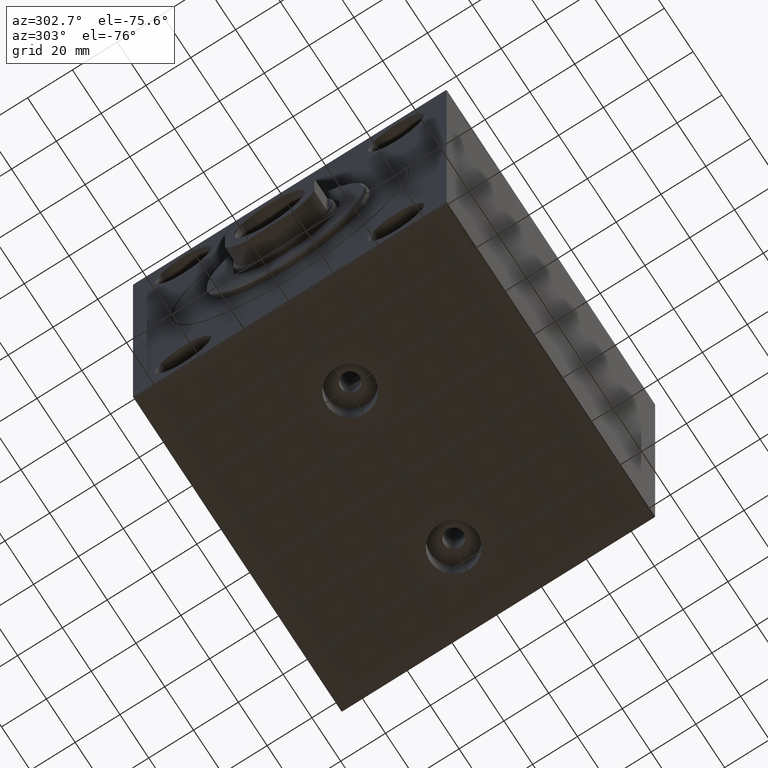
[diagram: clean part render]
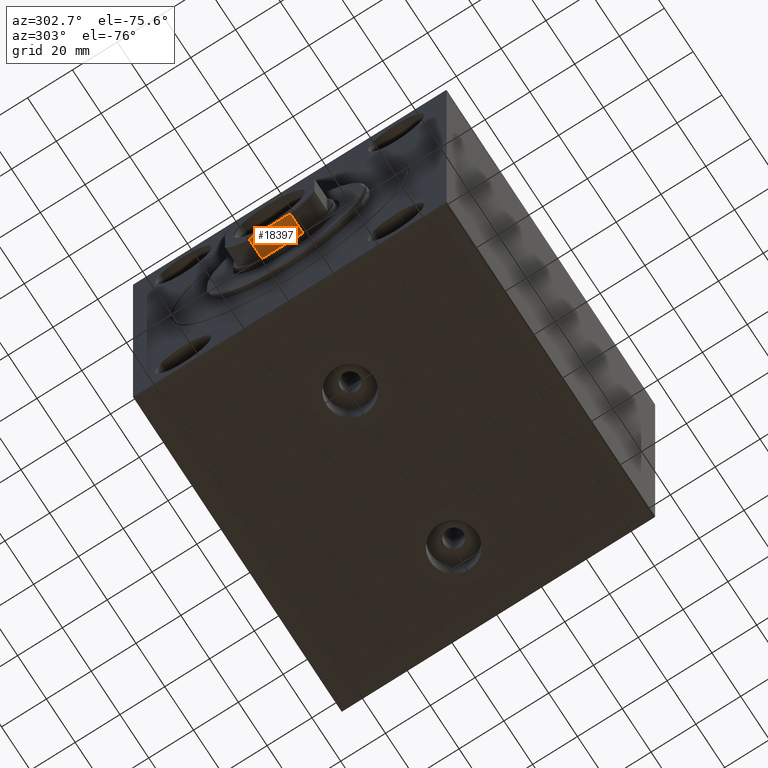
[diagram: same view with one face highlighted and labeled with its STEP entity id]
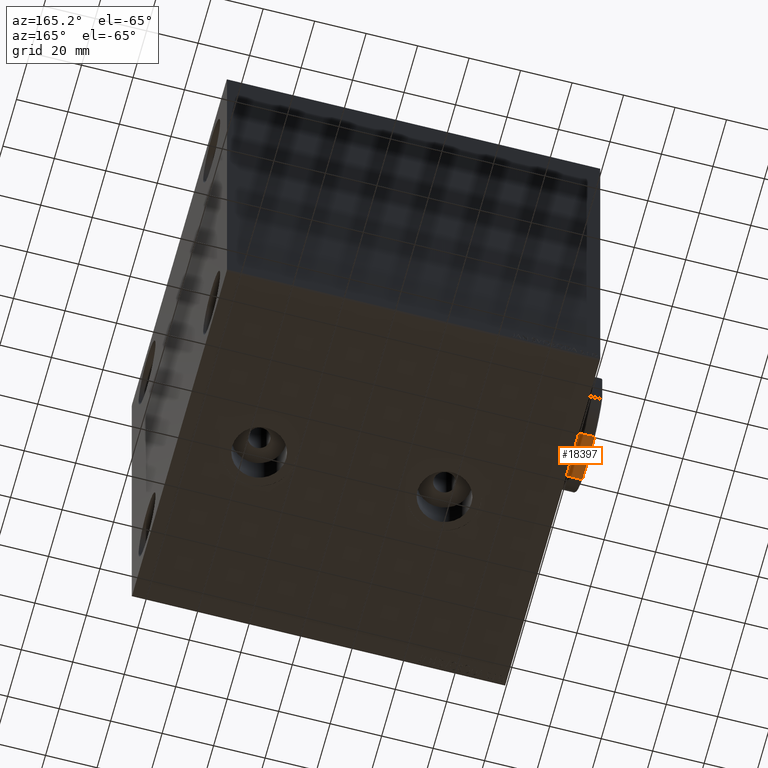
[diagram: same view with one face highlighted and labeled with its STEP entity id]
A machine part, auxiliary view. The second image highlights one B-rep face of the part: STEP entity #18397.
A second angle (auxiliary view) of the same face is appended — the face is thin or edge-on in the first view.
In plain terms, the highlighted planar face has unit normal (0, 0, 1).
Its self-contained STEP definition (entity closure, byte-faithful):
#34 = CARTESIAN_POINT ( 'NONE',  ( -20.00000000000000711, 19.99999999999998934, 64.99999999999998579 ) ) ;
#952 = VECTOR ( 'NONE', #38835, 1000.000000000000000 ) ;
#1202 = LINE ( 'NONE', #5076, #17236 ) ;
#5076 = CARTESIAN_POINT ( 'NONE',  ( -19.99999999999999645, -9.165151389911686763, -0.001000000000001000089 ) ) ;
#7338 = DIRECTION ( 'NONE',  ( -2.602085213965210642E-16, 1.000000000000000000, 0.000000000000000000 ) ) ;
#8057 = LINE ( 'NONE', #12379, #17334 ) ;
#9041 = CARTESIAN_POINT ( 'NONE',  ( -20.00000000000000355, 8.419619943916735849, 64.99999999999998579 ) ) ;
#10279 = ORIENTED_EDGE ( 'NONE', *, *, #29722, .T. ) ;
#10324 = LINE ( 'NONE', #10547, #952 ) ;
#10547 = CARTESIAN_POINT ( 'NONE',  ( -20.00000000000000711, 19.99999999999998934, 55.99999999999999289 ) ) ;
#10609 = B_SPLINE_CURVE_WITH_KNOTS ( 'NONE', 3,
 ( #19030, #32951, #15628, #29519 ),
 .UNSPECIFIED., .F., .F.,
 ( 4, 4 ),
 ( 0.000000000000000000, 0.0008036274864433664991 ),
 .UNSPECIFIED. ) ;
#10763 = DIRECTION ( 'NONE',  ( 1.000000000000000000, 2.602085213965210642E-16, -0.000000000000000000 ) ) ;
#11452 = PLANE ( 'NONE',  #28964 ) ;
#11937 = DIRECTION ( 'NONE',  ( 2.602085213965210642E-16, -1.000000000000000000, 0.000000000000000000 ) ) ;
#12379 = CARTESIAN_POINT ( 'NONE',  ( -20.00000000000000711, 19.99999999999998934, 64.99999999999998579 ) ) ;
#12665 = DIRECTION ( 'NONE',  ( -0.000000000000000000, -0.000000000000000000, 1.000000000000000000 ) ) ;
#15560 = CARTESIAN_POINT ( 'NONE',  ( -19.99999999999999645, -9.165151389911686763, 55.99999999999998579 ) ) ;
#15628 = CARTESIAN_POINT ( 'NONE',  ( -20.00000000000000000, -8.669375665356257699, 64.90309455053734666 ) ) ;
#15944 = VERTEX_POINT ( 'NONE', #15560 ) ;
#17236 = VECTOR ( 'NONE', #29478, 1000.000000000000000 ) ;
#17334 = VECTOR ( 'NONE', #11937, 1000.000000000000000 ) ;
#18397 = ADVANCED_FACE ( 'NONE', ( #39059 ), #11452, .F. ) ;
#19030 = CARTESIAN_POINT ( 'NONE',  ( -19.99999999999999645, -9.165151389911686763, 64.70000000000001705 ) ) ;
#19372 = CARTESIAN_POINT ( 'NONE',  ( -19.99999999999999645, -9.165151389911686763, 64.70000000000001705 ) ) ;
#20502 = EDGE_CURVE ( 'NONE', #15944, #24345, #1202, .T. ) ;
#20859 = ORIENTED_EDGE ( 'NONE', *, *, #42069, .F. ) ;
#21074 = VERTEX_POINT ( 'NONE', #39210 ) ;
#23365 = ORIENTED_EDGE ( 'NONE', *, *, #23992, .F. ) ;
#23992 = EDGE_CURVE ( 'NONE', #25690, #27921, #8057, .T. ) ;
#24345 = VERTEX_POINT ( 'NONE', #19372 ) ;
#24683 = VERTEX_POINT ( 'NONE', #44526 ) ;
#25690 = VERTEX_POINT ( 'NONE', #9041 ) ;
#26744 = CARTESIAN_POINT ( 'NONE',  ( -20.00000000000000000, -8.419619943916748284, 64.99999999999998579 ) ) ;
#27438 = CARTESIAN_POINT ( 'NONE',  ( -19.99999999999999289, 9.165151389911692092, -0.001000000000001000089 ) ) ;
#27497 = EDGE_CURVE ( 'NONE', #25690, #24683, #31363, .T. ) ;
#27921 = VERTEX_POINT ( 'NONE', #26744 ) ;
#28964 = AXIS2_PLACEMENT_3D ( 'NONE', #34, #10763, #7338 ) ;
#29478 = DIRECTION ( 'NONE',  ( -0.000000000000000000, -0.000000000000000000, 1.000000000000000000 ) ) ;
#29519 = CARTESIAN_POINT ( 'NONE',  ( -20.00000000000000000, -8.419619943916748284, 64.99999999999998579 ) ) ;
#29722 = EDGE_CURVE ( 'NONE', #24345, #27921, #10609, .T. ) ;
#29902 = EDGE_LOOP ( 'NONE', ( #38346, #10279, #23365, #37962, #20859, #39318 ) ) ;
#31363 = B_SPLINE_CURVE_WITH_KNOTS ( 'NONE', 3,
 ( #35017, #38452, #38680, #42093 ),
 .UNSPECIFIED., .F., .F.,
 ( 4, 4 ),
 ( 0.000000000000000000, 0.0008036274864433824369 ),
 .UNSPECIFIED. ) ;
#32951 = CARTESIAN_POINT ( 'NONE',  ( -19.99999999999999645, -8.917857062074594054, 64.80302227056790798 ) ) ;
#35017 = CARTESIAN_POINT ( 'NONE',  ( -20.00000000000000355, 8.419619943916735849, 64.99999999999998579 ) ) ;
#37962 = ORIENTED_EDGE ( 'NONE', *, *, #27497, .T. ) ;
#38346 = ORIENTED_EDGE ( 'NONE', *, *, #20502, .T. ) ;
#38452 = CARTESIAN_POINT ( 'NONE',  ( -20.00000000000000711, 8.669375665356248817, 64.90309455053734666 ) ) ;
#38680 = CARTESIAN_POINT ( 'NONE',  ( -20.00000000000000355, 8.917857062074588725, 64.80302227056790798 ) ) ;
#38835 = DIRECTION ( 'NONE',  ( 2.602085213965210642E-16, -1.000000000000000000, 0.000000000000000000 ) ) ;
#38879 = VECTOR ( 'NONE', #12665, 1000.000000000000000 ) ;
#39059 = FACE_OUTER_BOUND ( 'NONE', #29902, .T. ) ;
#39210 = CARTESIAN_POINT ( 'NONE',  ( -19.99999999999999289, 9.165151389911692092, 55.99999999999998579 ) ) ;
#39318 = ORIENTED_EDGE ( 'NONE', *, *, #44286, .T. ) ;
#42069 = EDGE_CURVE ( 'NONE', #21074, #24683, #44801, .T. ) ;
#42093 = CARTESIAN_POINT ( 'NONE',  ( -19.99999999999999289, 9.165151389911692092, 64.70000000000001705 ) ) ;
#44286 = EDGE_CURVE ( 'NONE', #21074, #15944, #10324, .T. ) ;
#44526 = CARTESIAN_POINT ( 'NONE',  ( -19.99999999999999289, 9.165151389911692092, 64.70000000000001705 ) ) ;
#44801 = LINE ( 'NONE', #27438, #38879 ) ;